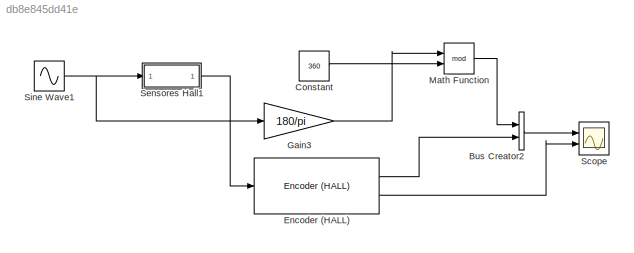
MODEL slx_db8e845dd41e
KIND model
BLOCK [BusCreator] Bus Creator2
  DisplayOption = bar
  Inputs = 2
  Ports = [2, 1]
BLOCK [Constant] Constant
  Value = 360
BLOCK [Reference] Encoder (HALL)  REF=Encoder/Encoder (HALL)
  Ports = [1, 2]
  SourceBlock = Encoder/Encoder (HALL)
  SourceType = Stateflow
BLOCK [Gain] Gain3
  Gain = 180/pi
  OutDataTypeStr = Inherit: Inherit via internal rule
  ParamDataTypeStr = Inherit: Inherit via internal rule
  SaturateOnIntegerOverflow = off
BLOCK [Math] Math Function
  Operator = mod
  Ports = [2, 1]
BLOCK [Scope] Scope
  DataFormat = StructureWithTime
  Floating = off
  LimitDataPoints = off
  NumInputPorts = 2
  Ports = [2]
  SampleTime = 0
  SaveName = ScopeData7
  ShowLegends = off
  YMax = 5~5
  YMin = -5~-5
  ZoomMode = yonly
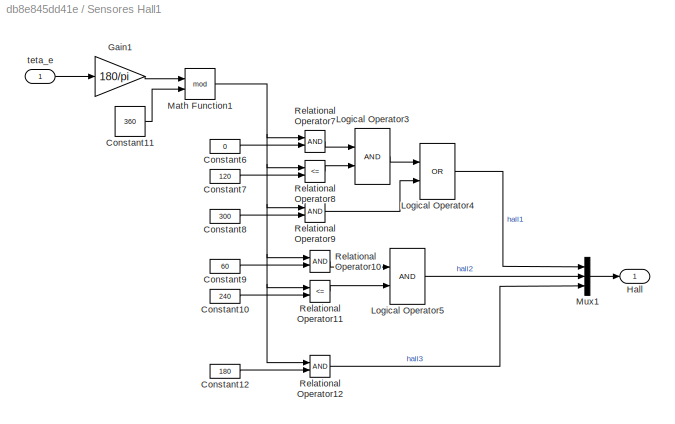
BLOCK [SubSystem] Sensores Hall1
  FunctionWithSeparateData = off
  MaskHideContents = off
  MinAlgLoopOccurrences = off
  Opaque = off
  Ports = [1, 1]
  PropExecContextOutsideSubsystem = off
  RTWSystemCode = Auto
  RequestExecContextInheritance = off
BLOCK [Constant] Sensores Hall1/Constant10
  Value = 240
BLOCK [Constant] Sensores Hall1/Constant11
  Value = 360
BLOCK [Constant] Sensores Hall1/Constant12
  Value = 180
BLOCK [Constant] Sensores Hall1/Constant6
  Value = 0
BLOCK [Constant] Sensores Hall1/Constant7
  Value = 120
BLOCK [Constant] Sensores Hall1/Constant8
  Value = 300
BLOCK [Constant] Sensores Hall1/Constant9
  Value = 60
BLOCK [Gain] Sensores Hall1/Gain1
  Gain = 180/pi
  OutDataTypeStr = Inherit: Inherit via internal rule
  ParamDataTypeStr = Inherit: Inherit via internal rule
  SaturateOnIntegerOverflow = off
BLOCK [Outport] Sensores Hall1/Hall
  IconDisplay = Port number
BLOCK [Logic] Sensores Hall1/Logical Operator3
  AllPortsSameDT = off
  OutDataTypeStr = boolean
  Ports = [2, 1]
BLOCK [Logic] Sensores Hall1/Logical Operator4
  AllPortsSameDT = off
  Operator = OR
  OutDataTypeStr = boolean
  Ports = [2, 1]
BLOCK [Logic] Sensores Hall1/Logical Operator5
  AllPortsSameDT = off
  OutDataTypeStr = boolean
  Ports = [2, 1]
BLOCK [Math] Sensores Hall1/Math Function1
  Operator = mod
  Ports = [2, 1]
BLOCK [Mux] Sensores Hall1/Mux1
  DisplayOption = bar
  Inputs = 3
  Ports = [3, 1]
BLOCK [RelationalOperator] Sensores Hall1/Relational Operator10
  Ports = [2, 1]
BLOCK [RelationalOperator] Sensores Hall1/Relational Operator11
  Operator = <=
  Ports = [2, 1]
BLOCK [RelationalOperator] Sensores Hall1/Relational Operator12
  Ports = [2, 1]
BLOCK [RelationalOperator] Sensores Hall1/Relational Operator7
  Ports = [2, 1]
BLOCK [RelationalOperator] Sensores Hall1/Relational Operator8
  Operator = <=
  Ports = [2, 1]
BLOCK [RelationalOperator] Sensores Hall1/Relational Operator9
  Ports = [2, 1]
BLOCK [Inport] Sensores Hall1/teta_e
  IconDisplay = Port number
BLOCK [Sin] Sine Wave1
  Amplitude = 2*pi
  Ports = [0, 1]
  SampleTime = 0
LINE Bus Creator2:1 -> Scope:1
LINE Constant:1 -> Math Function:2
LINE Encoder (HALL):1 -> Bus Creator2:2
LINE Encoder (HALL):2 -> Scope:2
LINE Gain3:1 -> Math Function:1
LINE Math Function:1 -> Bus Creator2:1
LINE Sensores Hall1/Constant10:1 -> Sensores Hall1/Relational Operator11:2
LINE Sensores Hall1/Constant11:1 -> Sensores Hall1/Math Function1:2
LINE Sensores Hall1/Constant12:1 -> Sensores Hall1/Relational Operator12:2
LINE Sensores Hall1/Constant6:1 -> Sensores Hall1/Relational Operator7:2
LINE Sensores Hall1/Constant7:1 -> Sensores Hall1/Relational Operator8:2
LINE Sensores Hall1/Constant8:1 -> Sensores Hall1/Relational Operator9:2
LINE Sensores Hall1/Constant9:1 -> Sensores Hall1/Relational Operator10:2
LINE Sensores Hall1/Gain1:1 -> Sensores Hall1/Math Function1:1
LINE Sensores Hall1/Logical Operator3:1 -> Sensores Hall1/Logical Operator4:1
LINE Sensores Hall1/Logical Operator4:1 -> Sensores Hall1/Mux1:1
LINE Sensores Hall1/Logical Operator5:1 -> Sensores Hall1/Mux1:2
NET Sensores Hall1/Math Function1:1 -> Sensores Hall1/Relational Operator10:1, Sensores Hall1/Relational Operator11:1, Sensores Hall1/Relational Operator12:1, Sensores Hall1/Relational Operator7:1, Sensores Hall1/Relational Operator8:1, Sensores Hall1/Relational Operator9:1
LINE Sensores Hall1/Mux1:1 -> Sensores Hall1/Hall:1
LINE Sensores Hall1/Relational Operator10:1 -> Sensores Hall1/Logical Operator5:1
LINE Sensores Hall1/Relational Operator11:1 -> Sensores Hall1/Logical Operator5:2
LINE Sensores Hall1/Relational Operator12:1 -> Sensores Hall1/Mux1:3
LINE Sensores Hall1/Relational Operator7:1 -> Sensores Hall1/Logical Operator3:1
LINE Sensores Hall1/Relational Operator8:1 -> Sensores Hall1/Logical Operator3:2
LINE Sensores Hall1/Relational Operator9:1 -> Sensores Hall1/Logical Operator4:2
LINE Sensores Hall1/teta_e:1 -> Sensores Hall1/Gain1:1
LINE Sensores Hall1:1 -> Encoder (HALL):1
NET Sine Wave1:1 -> Gain3:1, Sensores Hall1:1
note: NET lines group one-source signal fan-out (src -> all destinations, sorted); 1:1 wires keep LINE
